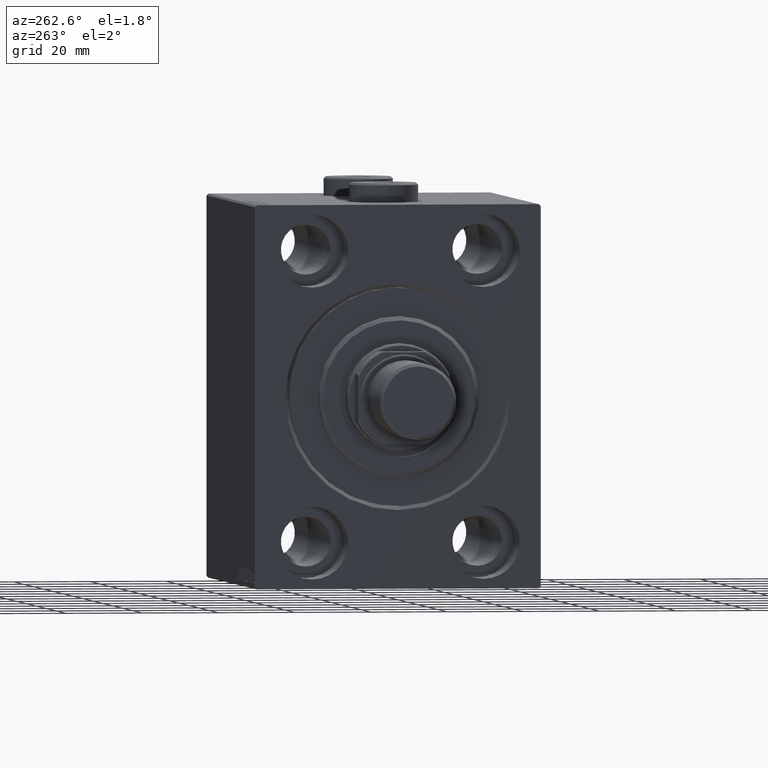
[diagram: clean part render]
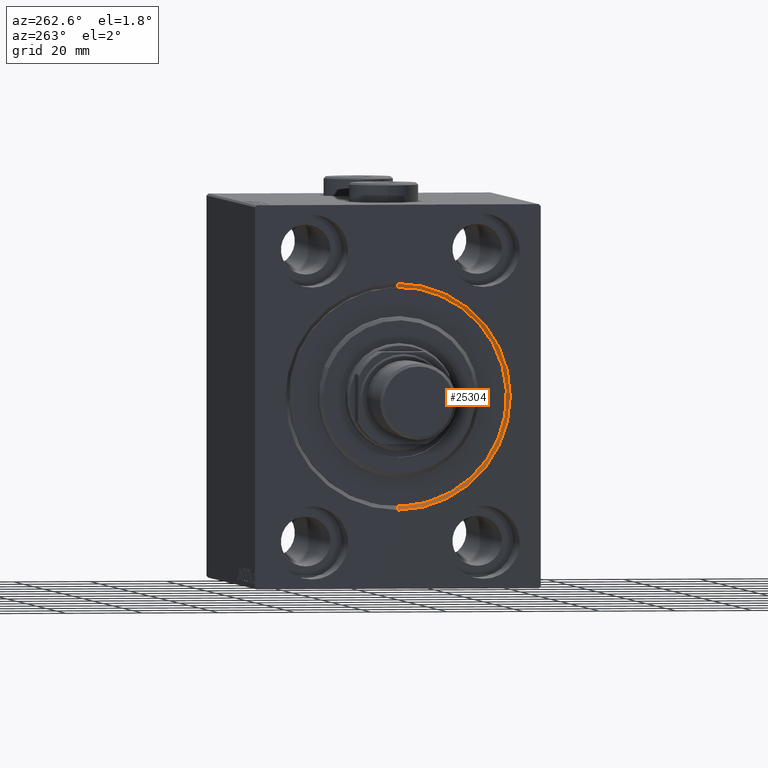
[diagram: same view with one face highlighted and labeled with its STEP entity id]
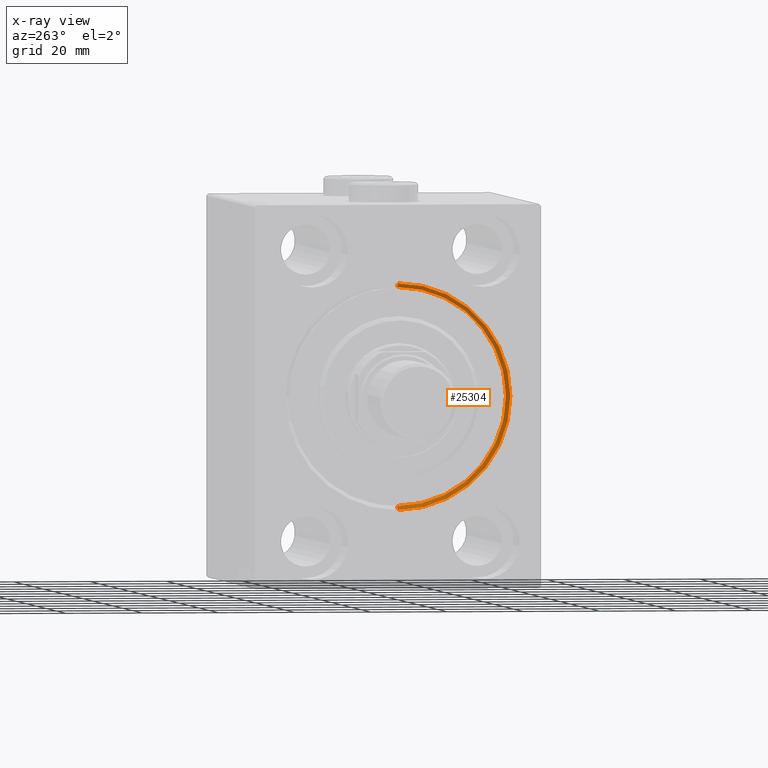
[diagram: x-ray of the same camera — body ghosted, the highlighted face saturated]
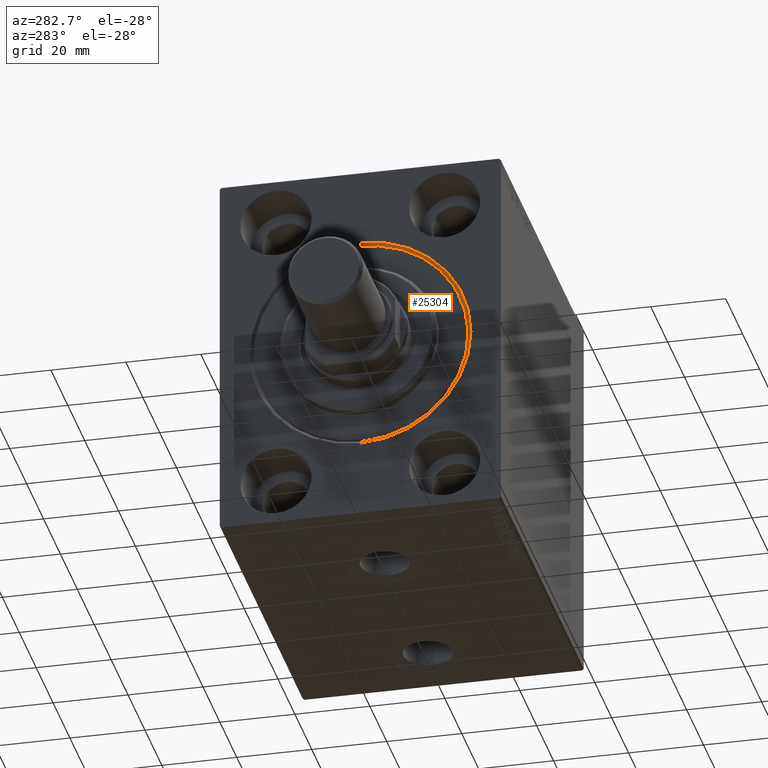
[diagram: same view with one face highlighted and labeled with its STEP entity id]
A machine part, auxiliary view. The second image highlights one B-rep face of the part: STEP entity #25304.
The next image is the same camera in x-ray: the body ghosted, the highlighted face saturated — about 0% of this face is hidden behind the body in this view.
A second angle (auxiliary view) of the same face is appended — the face is thin or edge-on in the first view.
In plain terms, the highlighted conical surface has half-angle 45 deg.
Its self-contained STEP definition (entity closure, byte-faithful):
#147 = DIRECTION ( 'NONE',  ( 0.000000000000000000, 0.000000000000000000, 1.000000000000000000 ) ) ;
#1515 = LINE ( 'NONE', #11076, #42703 ) ;
#1574 = CARTESIAN_POINT ( 'NONE',  ( 1.000000000000018208, 0.000000000000000000, 0.000000000000000000 ) ) ;
#3423 = EDGE_CURVE ( 'NONE', #5528, #33830, #17511, .T. ) ;
#3616 = FACE_OUTER_BOUND ( 'NONE', #20305, .T. ) ;
#4113 = AXIS2_PLACEMENT_3D ( 'NONE', #40570, #22946, #5579 ) ;
#5511 = CARTESIAN_POINT ( 'NONE',  ( 0.000000000000000000, 3.612708057484693970E-15, -29.50000000000001421 ) ) ;
#5528 = VERTEX_POINT ( 'NONE', #17260 ) ;
#5579 = DIRECTION ( 'NONE',  ( 0.000000000000000000, 0.000000000000000000, -1.000000000000000000 ) ) ;
#10548 = VECTOR ( 'NONE', #39281, 1000.000000000000000 ) ;
#10798 = CARTESIAN_POINT ( 'NONE',  ( 1.000000000000018208, 3.490243377569956456E-15, -28.50000000000000000 ) ) ;
#11076 = CARTESIAN_POINT ( 'NONE',  ( 1.000000000000018208, 0.000000000000000000, 28.50000000000000000 ) ) ;
#13090 = EDGE_CURVE ( 'NONE', #18818, #33830, #23332, .T. ) ;
#17237 = EDGE_CURVE ( 'NONE', #31733, #18818, #1515, .T. ) ;
#17260 = CARTESIAN_POINT ( 'NONE',  ( 1.000000000000018208, 3.490243377569956456E-15, -28.50000000000000000 ) ) ;
#17511 = LINE ( 'NONE', #10798, #10548 ) ;
#17778 = EDGE_CURVE ( 'NONE', #5528, #31733, #35318, .T. ) ;
#18818 = VERTEX_POINT ( 'NONE', #32808 ) ;
#20305 = EDGE_LOOP ( 'NONE', ( #32061, #35222, #44236, #43330 ) ) ;
#22409 = DIRECTION ( 'NONE',  ( 0.000000000000000000, 0.000000000000000000, -1.000000000000000000 ) ) ;
#22946 = DIRECTION ( 'NONE',  ( 1.000000000000000000, 0.000000000000000000, 0.000000000000000000 ) ) ;
#23332 = CIRCLE ( 'NONE', #4113, 29.50000000000001421 ) ;
#25304 = ADVANCED_FACE ( 'NONE', ( #3616 ), #45599, .F. ) ;
#26443 = AXIS2_PLACEMENT_3D ( 'NONE', #1574, #29834, #22409 ) ;
#28176 = DIRECTION ( 'NONE',  ( -1.000000000000000000, 0.000000000000000000, 0.000000000000000000 ) ) ;
#28397 = CARTESIAN_POINT ( 'NONE',  ( 1.000000000000018208, 0.000000000000000000, 0.000000000000000000 ) ) ;
#29834 = DIRECTION ( 'NONE',  ( -1.000000000000000000, 0.000000000000000000, 0.000000000000000000 ) ) ;
#29955 = CARTESIAN_POINT ( 'NONE',  ( 1.000000000000018208, 0.000000000000000000, 28.50000000000000000 ) ) ;
#31733 = VERTEX_POINT ( 'NONE', #29955 ) ;
#32061 = ORIENTED_EDGE ( 'NONE', *, *, #17778, .F. ) ;
#32808 = CARTESIAN_POINT ( 'NONE',  ( 0.000000000000000000, 0.000000000000000000, 29.50000000000001421 ) ) ;
#33830 = VERTEX_POINT ( 'NONE', #5511 ) ;
#35222 = ORIENTED_EDGE ( 'NONE', *, *, #3423, .T. ) ;
#35318 = CIRCLE ( 'NONE', #26443, 28.50000000000000000 ) ;
#39281 = DIRECTION ( 'NONE',  ( -0.7071067811865487940, 8.659560562354919300E-17, -0.7071067811865463515 ) ) ;
#40419 = AXIS2_PLACEMENT_3D ( 'NONE', #28397, #28176, #147 ) ;
#40429 = DIRECTION ( 'NONE',  ( -0.7071067811865487940, 0.000000000000000000, 0.7071067811865463515 ) ) ;
#40570 = CARTESIAN_POINT ( 'NONE',  ( 0.000000000000000000, 0.000000000000000000, 0.000000000000000000 ) ) ;
#42703 = VECTOR ( 'NONE', #40429, 1000.000000000000000 ) ;
#43330 = ORIENTED_EDGE ( 'NONE', *, *, #17237, .F. ) ;
#44236 = ORIENTED_EDGE ( 'NONE', *, *, #13090, .F. ) ;
#45599 = CONICAL_SURFACE ( 'NONE', #40419, 28.50000000000000000, 0.7853981633974466137 ) ;